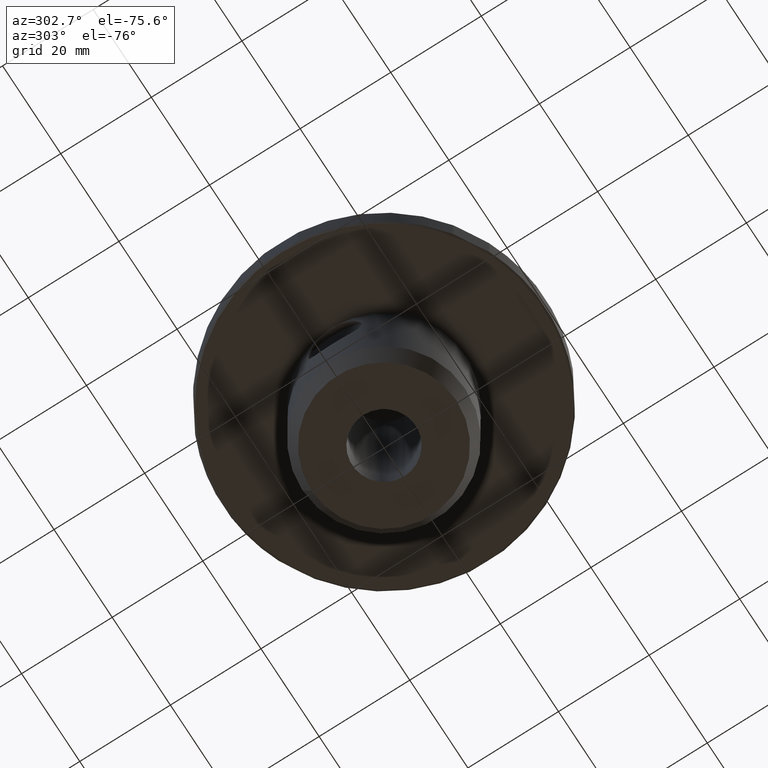
[diagram: clean part render]
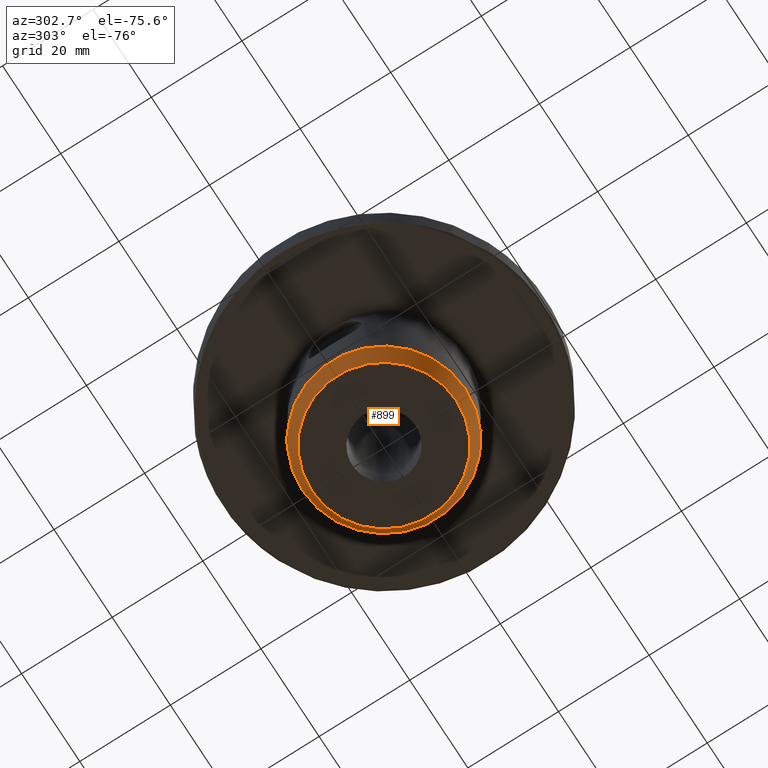
[diagram: same view with one face highlighted and labeled with its STEP entity id]
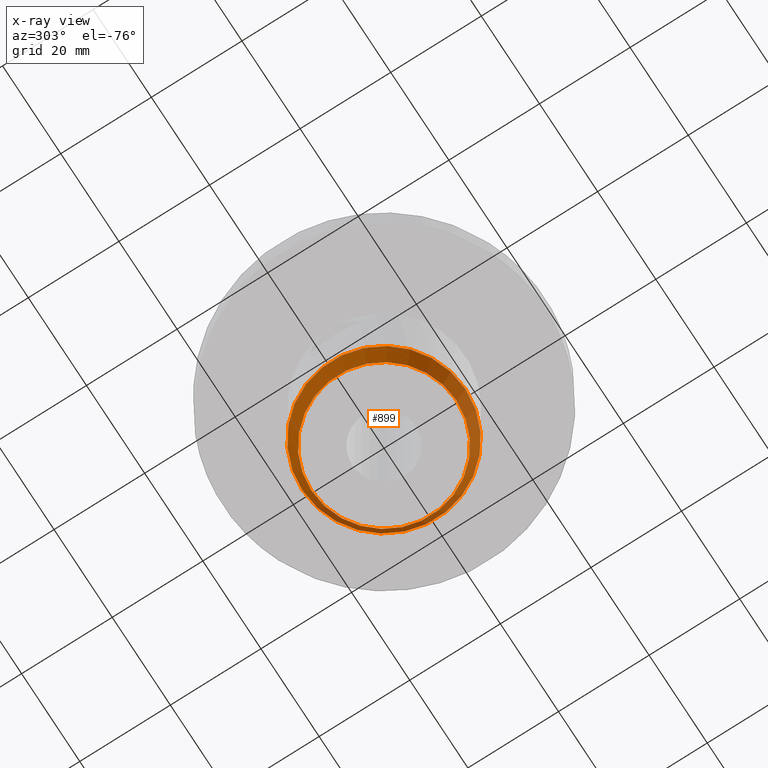
[diagram: x-ray of the same camera — body ghosted, the highlighted face saturated]
A machine part, auxiliary view. The second image highlights one B-rep face of the part: STEP entity #899.
The next image is the same camera in x-ray: the body ghosted, the highlighted face saturated — about 0% of this face is hidden behind the body in this view.
In plain terms, the highlighted conical surface has half-angle 25 deg.
Its self-contained STEP definition (entity closure, byte-faithful):
#81=CONICAL_SURFACE('',#982,16.,0.436332312998585);
#115=CIRCLE('',#978,18.);
#117=CIRCLE('',#981,16.);
#175=ORIENTED_EDGE('',*,*,#421,.T.);
#176=ORIENTED_EDGE('',*,*,#424,.F.);
#421=EDGE_CURVE('',#546,#546,#115,.T.);
#424=EDGE_CURVE('',#549,#549,#117,.T.);
#546=VERTEX_POINT('',#1394);
#549=VERTEX_POINT('',#1419);
#683=EDGE_LOOP('',(#175));
#684=EDGE_LOOP('',(#176));
#779=FACE_BOUND('',#683,.T.);
#780=FACE_BOUND('',#684,.T.);
#899=ADVANCED_FACE('',(#779,#780),#81,.T.);
#978=AXIS2_PLACEMENT_3D('',#1393,#1103,#1104);
#981=AXIS2_PLACEMENT_3D('',#1418,#1109,#1110);
#982=AXIS2_PLACEMENT_3D('',#1420,#1111,#1112);
#1103=DIRECTION('',(-5.47430718319515E-16,-8.51929311524195E-24,-1.));
#1104=DIRECTION('',(-6.38378239159465E-16,1.,-3.83055215771257E-23));
#1109=DIRECTION('',(-5.47430718319515E-16,-8.51929311524195E-24,-1.));
#1110=DIRECTION('',(-6.38378239159465E-16,1.,-3.83055215771257E-23));
#1111=DIRECTION('',(5.47430718319515E-16,8.51929311524195E-24,1.));
#1112=DIRECTION('',(6.38378239159465E-16,-1.,3.83055215771257E-23));
#1393=CARTESIAN_POINT('',(-1.11670884087533E-13,-9.81645354470045E-14,-32.7109861589809));
#1394=CARTESIAN_POINT('',(-1.23161692392404E-13,17.9999999999999,-32.7109861589809));
#1418=CARTESIAN_POINT('',(-1.14018822015405E-13,-9.81645354835439E-14,-37.));
#1419=CARTESIAN_POINT('',(-1.24232873841956E-13,15.9999999999999,-37.));
#1420=CARTESIAN_POINT('',(-1.14018822015405E-13,-9.81645354835439E-14,-37.));